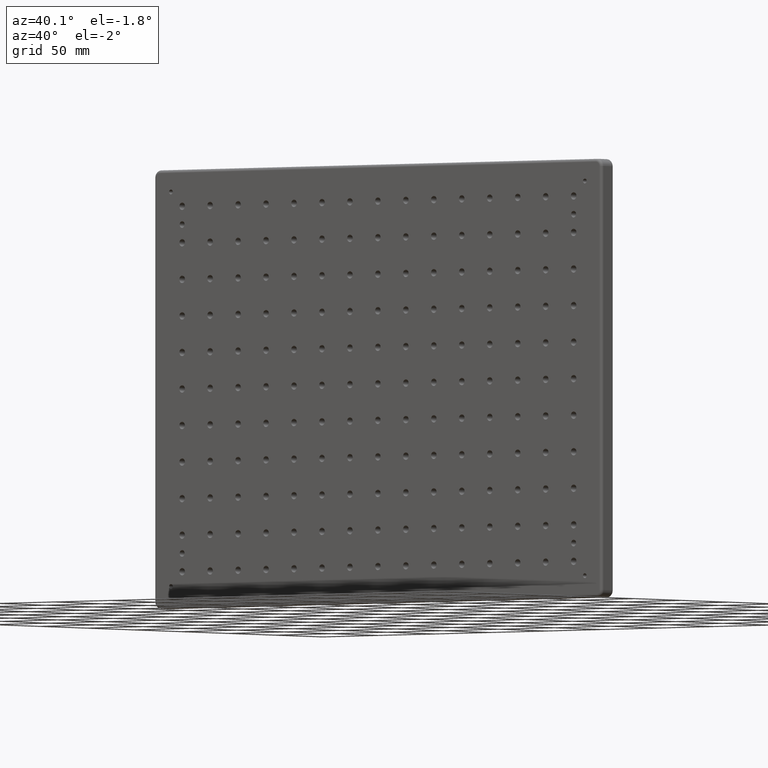
[diagram: clean part render]
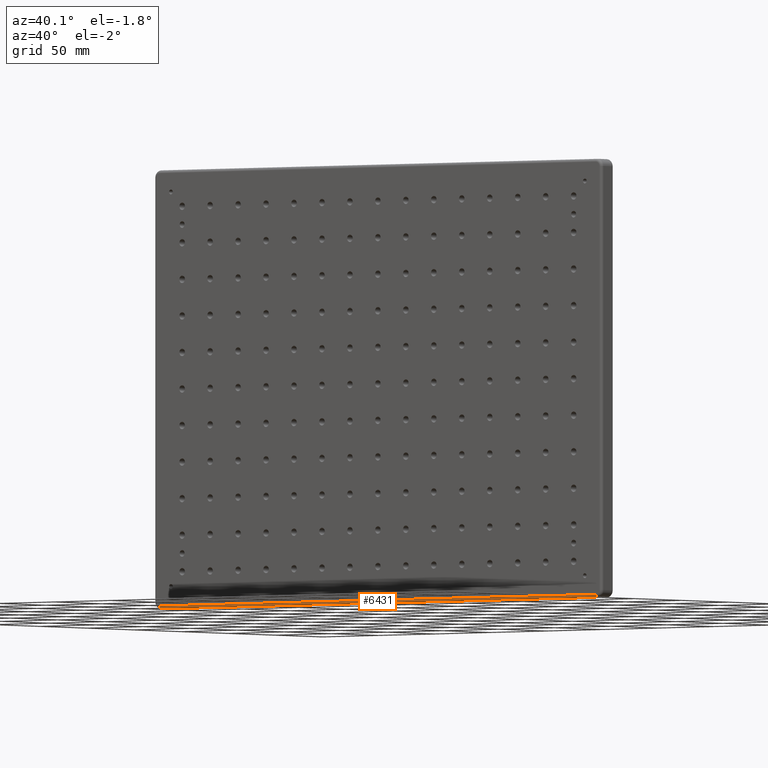
[diagram: same view with one face highlighted and labeled with its STEP entity id]
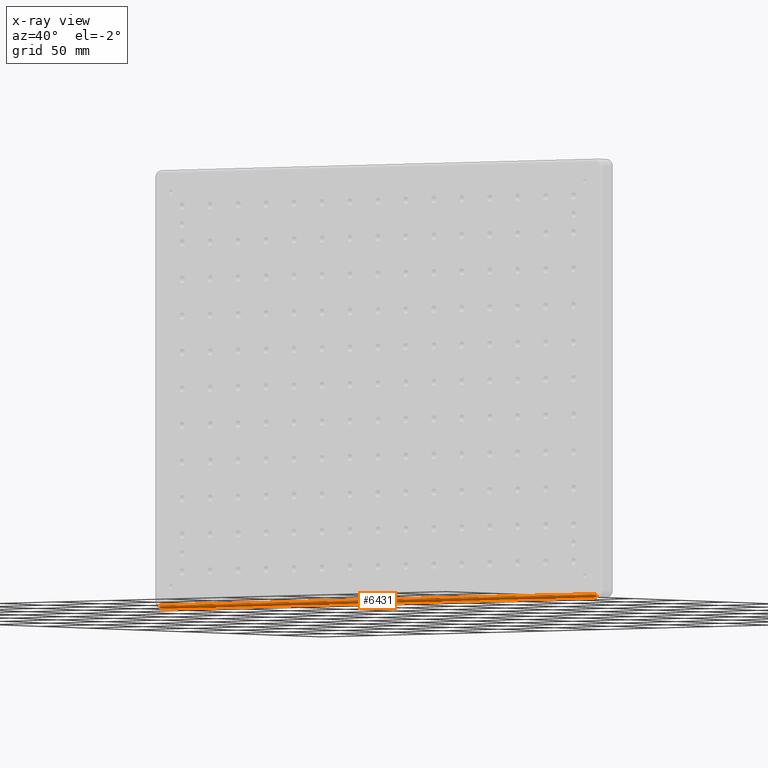
[diagram: x-ray of the same camera — body ghosted, the highlighted face saturated]
A machine part, auxiliary view. The second image highlights one B-rep face of the part: STEP entity #6431.
The next image is the same camera in x-ray: the body ghosted, the highlighted face saturated — about 0% of this face is hidden behind the body in this view.
In plain terms, the highlighted cylindrical surface (edge-blend (fillet) strip) has radius 2 mm, axis along (1, 0, -0).
Its self-contained STEP definition (entity closure, byte-faithful):
#24 = VERTEX_POINT ( 'NONE', #4680 ) ;
#157 = CARTESIAN_POINT ( 'NONE',  ( -195.0000000000000000, -6.500000000000000000, -148.0000000000000000 ) ) ;
#222 = VERTEX_POINT ( 'NONE', #157 ) ;
#755 = VECTOR ( 'NONE', #6150, 1000.000000000000000 ) ;
#982 = CARTESIAN_POINT ( 'NONE',  ( 195.0000000000000000, -4.500000000000000000, -148.0000000000000000 ) ) ;
#988 = VECTOR ( 'NONE', #7277, 1000.000000000000000 ) ;
#1326 = LINE ( 'NONE', #12740, #988 ) ;
#1592 = VERTEX_POINT ( 'NONE', #2982 ) ;
#1623 = AXIS2_PLACEMENT_3D ( 'NONE', #6736, #9982, #8143 ) ;
#2352 = EDGE_LOOP ( 'NONE', ( #8653, #2399, #11665, #5824 ) ) ;
#2399 = ORIENTED_EDGE ( 'NONE', *, *, #6023, .F. ) ;
#2982 = CARTESIAN_POINT ( 'NONE',  ( -195.0000000000000000, -4.500000000000000000, -150.0000000000000000 ) ) ;
#3239 = FACE_OUTER_BOUND ( 'NONE', #2352, .T. ) ;
#3605 = LINE ( 'NONE', #6006, #755 ) ;
#4273 = DIRECTION ( 'NONE',  ( -1.000000000000000000, -0.0000000000000000000, -0.0000000000000000000 ) ) ;
#4680 = CARTESIAN_POINT ( 'NONE',  ( 195.0000000000000000, -6.500000000000000000, -148.0000000000000000 ) ) ;
#4721 = VERTEX_POINT ( 'NONE', #9877 ) ;
#5047 = EDGE_CURVE ( 'NONE', #4721, #24, #6600, .T. ) ;
#5192 = DIRECTION ( 'NONE',  ( 0.0000000000000000000, 0.0000000000000000000, 1.000000000000000000 ) ) ;
#5233 = DIRECTION ( 'NONE',  ( 0.0000000000000000000, 0.0000000000000000000, 1.000000000000000000 ) ) ;
#5824 = ORIENTED_EDGE ( 'NONE', *, *, #9563, .F. ) ;
#6006 = CARTESIAN_POINT ( 'NONE',  ( 195.0000000000000000, -6.500000000000000000, -148.0000000000000000 ) ) ;
#6023 = EDGE_CURVE ( 'NONE', #222, #24, #3605, .T. ) ;
#6150 = DIRECTION ( 'NONE',  ( 1.000000000000000000, -0.0000000000000000000, -0.0000000000000000000 ) ) ;
#6431 = ADVANCED_FACE ( 'NONE', ( #3239 ), #8776, .T. ) ;
#6600 = CIRCLE ( 'NONE', #13836, 2.000000000000001800 ) ;
#6736 = CARTESIAN_POINT ( 'NONE',  ( -200.0000000000000000, -4.500000000000000000, -148.0000000000000000 ) ) ;
#7030 = AXIS2_PLACEMENT_3D ( 'NONE', #8539, #4273, #5233 ) ;
#7277 = DIRECTION ( 'NONE',  ( -1.000000000000000000, 0.0000000000000000000, 0.0000000000000000000 ) ) ;
#8143 = DIRECTION ( 'NONE',  ( 0.0000000000000000000, 0.0000000000000000000, -1.000000000000000000 ) ) ;
#8539 = CARTESIAN_POINT ( 'NONE',  ( -195.0000000000000000, -4.500000000000000000, -148.0000000000000000 ) ) ;
#8653 = ORIENTED_EDGE ( 'NONE', *, *, #5047, .T. ) ;
#8776 = CYLINDRICAL_SURFACE ( 'NONE', #1623, 2.000000000000001800 ) ;
#9563 = EDGE_CURVE ( 'NONE', #4721, #1592, #1326, .T. ) ;
#9633 = DIRECTION ( 'NONE',  ( -1.000000000000000000, -0.0000000000000000000, -0.0000000000000000000 ) ) ;
#9877 = CARTESIAN_POINT ( 'NONE',  ( 195.0000000000000000, -4.500000000000000000, -150.0000000000000000 ) ) ;
#9982 = DIRECTION ( 'NONE',  ( 1.000000000000000000, 0.0000000000000000000, -0.0000000000000000000 ) ) ;
#11423 = EDGE_CURVE ( 'NONE', #1592, #222, #12512, .T. ) ;
#11665 = ORIENTED_EDGE ( 'NONE', *, *, #11423, .F. ) ;
#12512 = CIRCLE ( 'NONE', #7030, 2.000000000000001800 ) ;
#12740 = CARTESIAN_POINT ( 'NONE',  ( -195.0000000000000000, -4.500000000000000000, -150.0000000000000000 ) ) ;
#13836 = AXIS2_PLACEMENT_3D ( 'NONE', #982, #9633, #5192 ) ;